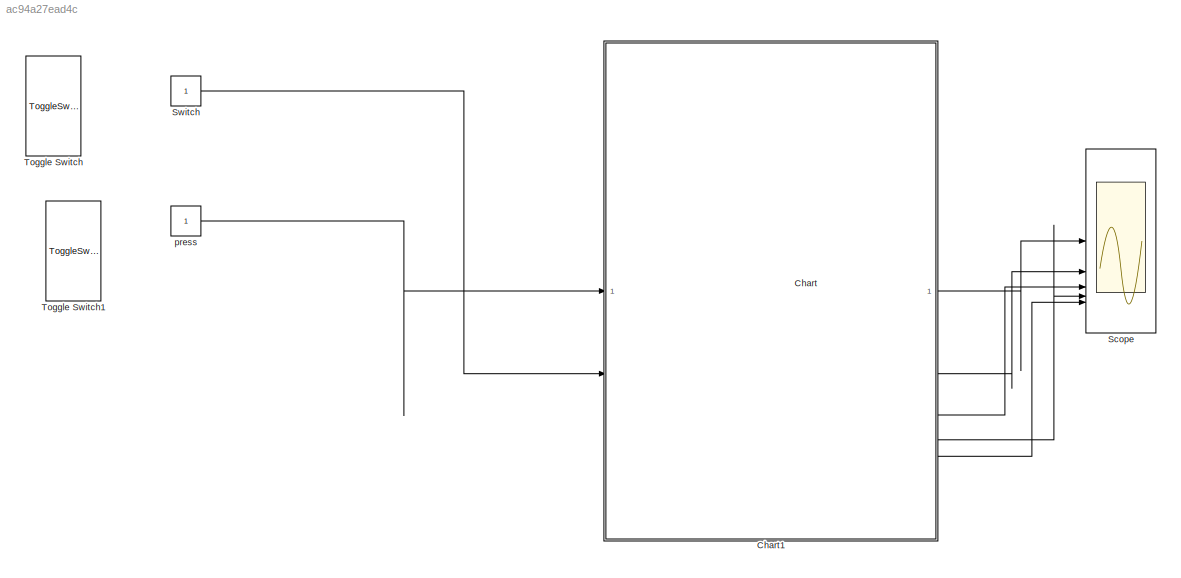
MODEL slx_ac94a27ead4c
KIND model
CONFIG AbsTol = auto
CONFIG EnableMultiTasking = off
CONFIG FixedStep = auto
CONFIG MaxStep = auto
CONFIG MinStep = auto
CONFIG RelTol = 1e-3
CONFIG SampleTimeConstraint = Unconstrained
CONFIG SolverName = VariableStepAuto
CONFIG StartTime = 0.0
CONFIG StopTime = Inf
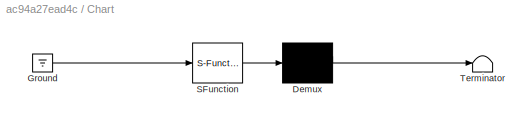
BLOCK [SubSystem] Chart
  ErrorFcn = Stateflow.Translate.translate
  PermitHierarchicalResolution = ExplicitOnly
  SFBlockType = Chart
  TreatAsAtomicUnit = on
BLOCK [Demux] Chart/ Demux 
  Outputs = 1
BLOCK [Ground] Chart/ Ground 
BLOCK [S-Function] Chart/ SFunction 
  EnableBusSupport = on
  FunctionName = sf_sfun
  PortCounts = [1 1]
  SFcnIsStateOwnerBlock = off
  SFunctionDeploymentMode = off
  Tag = Stateflow S-Function 3
BLOCK [Terminator] Chart/ Terminator 
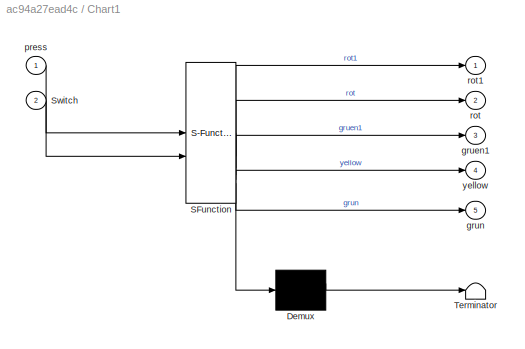
BLOCK [SubSystem] Chart1
  ErrorFcn = Stateflow.Translate.translate
  PermitHierarchicalResolution = ExplicitOnly
  PortSchema = {"entries":[{"content":{"sides":[{"content":{"connectorIds":["In2","In1"]},"type":"ConnectorPlacement.EquallySpacedRectSide","uuid":"4fda1b98-2af6-4351-880e-f9bdc70e47dd"},{"content":{"connectorIds":["Out1","Out2","Out3","Out5","Out4"],"side":"RIGHT"},"type":"ConnectorPlacement.EquallySpacedRectSide","uuid":"94420cfc-6b2b-438e-8ee2-c97ac7c28afd"},{"content":{"side":"TOP"},"type":"ConnectorPlacemen...<+256ch>
  SFBlockType = Chart
  TreatAsAtomicUnit = on
BLOCK [Demux] Chart1/ Demux 
  Outputs = 1
BLOCK [S-Function] Chart1/ SFunction 
  EnableBusSupport = on
  FunctionName = sf_sfun
  PortCounts = [2 6]
  SFcnIsStateOwnerBlock = off
  SFunctionDeploymentMode = off
  Tag = Stateflow S-Function 1
BLOCK [Terminator] Chart1/ Terminator 
BLOCK [Inport] Chart1/Switch
  Port = 2
BLOCK [Outport] Chart1/gruen1
  Port = 3
BLOCK [Outport] Chart1/grun
  Port = 5
BLOCK [Inport] Chart1/press
BLOCK [Outport] Chart1/rot
  Port = 2
BLOCK [Outport] Chart1/rot1
BLOCK [Outport] Chart1/yellow
  Port = 4
BLOCK [Scope] Scope
  Floating = off
  NumInputPorts = 5
  ScopeSpecificationString = Simulink.scopes.TimeScopeBlockCfg('CurrentConfiguration', extmgr.ConfigurationSet(extmgr.Configuration('Core','General UI',true),extmgr.Configuration('Core','Source UI',true),extmgr.Configuration('Sources','WiredSimulink',true),extmgr.Configuration('Visuals','Time Domain',true,'SerializedDisplays',{struct('MinYLimReal','-0.125','MaxYLimReal','1.125','YLabelReal','','MinYLimMag','0.00000','MaxYLimM...<+4819ch>
BLOCK [Constant] Switch
BLOCK [ToggleSwitchBlock] Toggle Switch
BLOCK [ToggleSwitchBlock] Toggle Switch1
BLOCK [Constant] press
LINE Chart1:1 -> Scope:1
LINE Chart1:2 -> Scope:2
LINE Chart1:3 -> Scope:3
LINE Chart1:4 -> Scope:4
LINE Chart1:5 -> Scope:5
LINE Switch:1 -> Chart1:2
LINE press:1 -> Chart1:1
CHART Chart1 states=9 transitions=14
  STATE_LABEL 'Traffic\nen: x= 0;'
  STATE_LABEL 'Light_Change'
  STATE_LABEL 'GelbS\nen:yellow = 1;\nex:yellow=0;\n'
  STATE_LABEL 'GelbS_RotF\nen:rot1 = 1;\nen:yellow=1;\n'
  STATE_LABEL 'GrunS_RotF\nen:grun=1;\nen:rot1=1;\nen:yellow=0;\nen:rot=0;\nex:grun= 0;'
  STATE_LABEL 'RotS_RotF\nen:rot=1;\nen:rot1 = 1;\nen:yellow = 0;\n'
  STATE_LABEL 'RotS_Gr_nF\nen:gruen1 = 1;\nen:rot= 1;\nen:rot1= 0;\nex:gruen1 = 0;'
  STATE_LABEL '[after(1,sec)&&x == 0]{x= x+1}'
  STATE_LABEL 'after(3,sec)[x == 1]{x = x+1}'
  STATE_LABEL '[(press == 1&&x ==7&&after(20,sec)) || after(40,sec)]{x = x+1}'
  STATE_LABEL 'after(10,sec)[x ==2]{x = x+1}'
  STATE_LABEL '[after(2,sec)&&x ==8]{x = x+1}'
  STATE_LABEL 'after(2,sec)[x == 5]{x = x+1}'
  STATE_LABEL 'after(2,sec)[x == 6]{x=x+1}'
  STATE_LABEL 'after(5,sec)[x == 3]{x = x+1}'
  STATE_LABEL 'after(15,sec)[x == 4]{x=x+1}'
  STATE_LABEL 'Aus\nen:yellow = 0;\nen:rot1 = 0;\nen:rot = 0;\nen:grun= 0;\nen:gruen1 = 0;\n'
  STATE_LABEL 'An\nen:yellow = 1;\nen:rot1 = 0;\nen:rot = 0;\nen:grun= 0;\nen:gruen1 = 0;\nen:x = 0;'
  STATE_LABEL '[Switch == 1]'
  STATE_LABEL '[Switch == 0 ||(x ==9&&after(10,sec))]'
  STATE_LABEL '[Switch == 1]'
  STATE_LABEL 'Light_Change'
  STATE_LABEL 'GelbS\nen:yellow = 1;\nex:yellow=0;\n'
  STATE_LABEL 'GelbS_RotF\nen:rot1 = 1;\nen:yellow=1;\n'
  STATE_LABEL 'GrunS_RotF\nen:grun=1;\nen:rot1=1;\nen:yellow=0;\nen:rot=0;\nex:grun= 0;'
  STATE_LABEL 'RotS_RotF\nen:rot=1;\nen:rot1 = 1;\nen:yellow = 0;\n'
  STATE_LABEL 'RotS_Gr_nF\nen:gruen1 = 1;\nen:rot= 1;\nen:rot1= 0;\nex:gruen1 = 0;'
  STATE_LABEL '[after(1,sec)&&x == 0]{x= x+1}'
  STATE_LABEL 'after(3,sec)[x == 1]{x = x+1}'
  STATE_LABEL '[(press == 1&&x ==7&&after(20,sec)) || after(40,sec)]{x = x+1}'
  STATE_LABEL 'after(10,sec)[x ==2]{x = x+1}'
  STATE_LABEL '[after(2,sec)&&x ==8]{x = x+1}'
  STATE_LABEL 'after(2,sec)[x == 5]{x = x+1}'
  STATE_LABEL 'after(2,sec)[x == 6]{x=x+1}'
  STATE_LABEL 'after(5,sec)[x == 3]{x = x+1}'
  STATE_LABEL 'after(15,sec)[x == 4]{x=x+1}'
  STATE_LABEL 'GelbS\nen:yellow = 1;\nex:yellow=0;\n'
  STATE_LABEL 'GelbS_RotF\nen:rot1 = 1;\nen:yellow=1;\n'
  STATE_LABEL 'GrunS_RotF\nen:grun=1;\nen:rot1=1;\nen:yellow=0;\nen:rot=0;\nex:grun= 0;'
  STATE_LABEL 'RotS_RotF\nen:rot=1;\nen:rot1 = 1;\nen:yellow = 0;\n'
CHART Chart states=0 transitions=0
CHART  states=0 transitions=0
CHART  states=0 transitions=0
